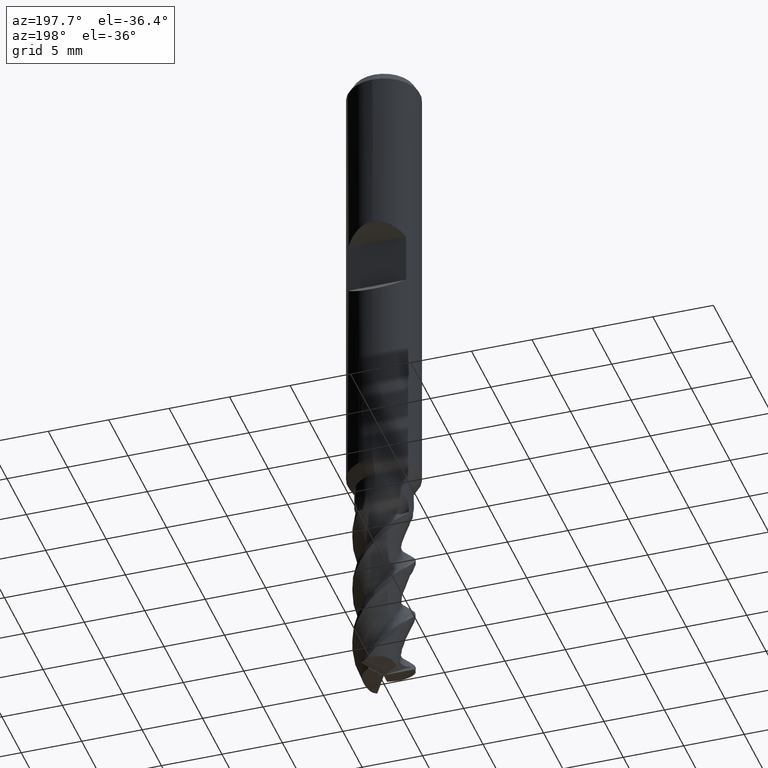
[diagram: clean part render]
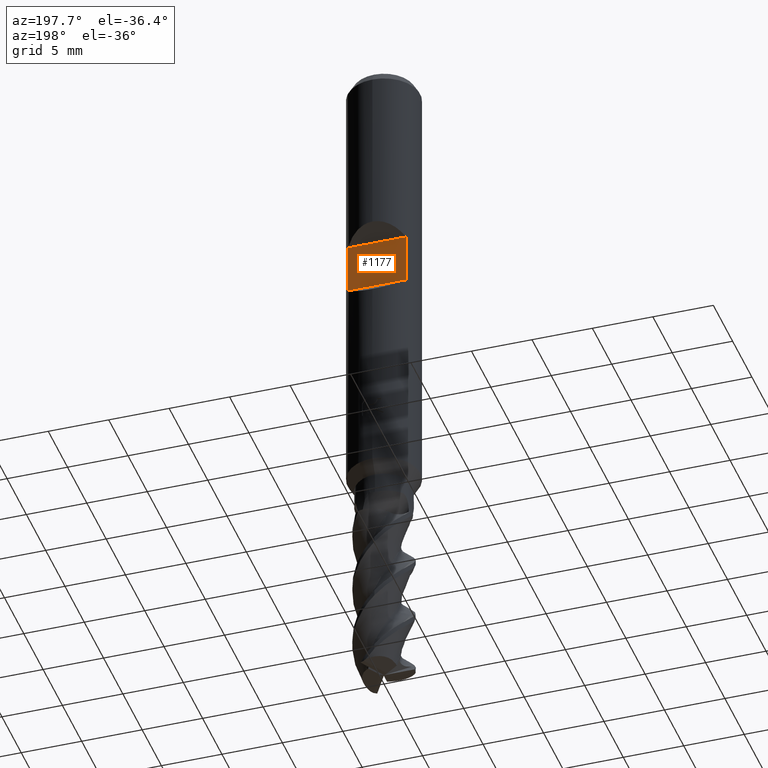
[diagram: same view with one face highlighted and labeled with its STEP entity id]
A machine part, auxiliary view. The second image highlights one B-rep face of the part: STEP entity #1177.
In plain terms, the highlighted planar face has unit normal (0, -1, 0).
Its self-contained STEP definition (entity closure, byte-faithful):
#525=EDGE_CURVE('',#731,#1365,#1445,.T.);
#693=VERTEX_POINT('',#1633);
#697=EDGE_CURVE('',#731,#1071,#1637,.T.);
#731=VERTEX_POINT('',#1680);
#793=EDGE_CURVE('',#693,#1365,#1747,.T.);
#1071=VERTEX_POINT('',#2041);
#1177=ADVANCED_FACE('',(#2158),#2159,.F.);
#1305=EDGE_CURVE('',#1071,#693,#2297,.T.);
#1365=VERTEX_POINT('',#2363);
#1445=LINE('',#3516,#3517);
#1633=CARTESIAN_POINT('',(2.4,1.8,-20.1));
#1637=LINE('',#4934,#4935);
#1680=CARTESIAN_POINT('',(-2.4,1.8,-15.9));
#1747=LINE('',#6022,#6023);
#2041=CARTESIAN_POINT('',(-2.4,1.8,-20.1));
#2158=FACE_OUTER_BOUND('',#8860,.T.);
#2159=PLANE('',#8861);
#2297=LINE('',#9374,#9375);
#2363=CARTESIAN_POINT('',(2.4,1.8,-15.9));
#3516=CARTESIAN_POINT('',(-3.0,1.8,-15.9));
#3517=VECTOR('',#10432,1.0);
#4934=CARTESIAN_POINT('',(-2.4,1.8,-18.0));
#4935=VECTOR('',#10676,1.0);
#6022=CARTESIAN_POINT('',(2.4,1.8,-18.0));
#6023=VECTOR('',#10794,1.0);
#8860=EDGE_LOOP('',(#11172,#11173,#11174,#11175));
#8861=AXIS2_PLACEMENT_3D('',#11176,#11177,#11178);
#9374=CARTESIAN_POINT('',(-3.0,1.8,-20.1));
#9375=VECTOR('',#11327,1.0);
#10432=DIRECTION('',(1.0,0.0,0.0));
#10676=DIRECTION('',(0.0,0.0,-1.0));
#10794=DIRECTION('',(-0.0,-0.0,1.0));
#11172=ORIENTED_EDGE('',*,*,#793,.F.);
#11173=ORIENTED_EDGE('',*,*,#1305,.F.);
#11174=ORIENTED_EDGE('',*,*,#697,.F.);
#11175=ORIENTED_EDGE('',*,*,#525,.T.);
#11176=CARTESIAN_POINT('',(-3.0,1.8,-20.1));
#11177=DIRECTION('',(0.0,-1.0,0.0));
#11178=DIRECTION('',(0.0,0.0,-1.0));
#11327=DIRECTION('',(1.0,0.0,0.0));